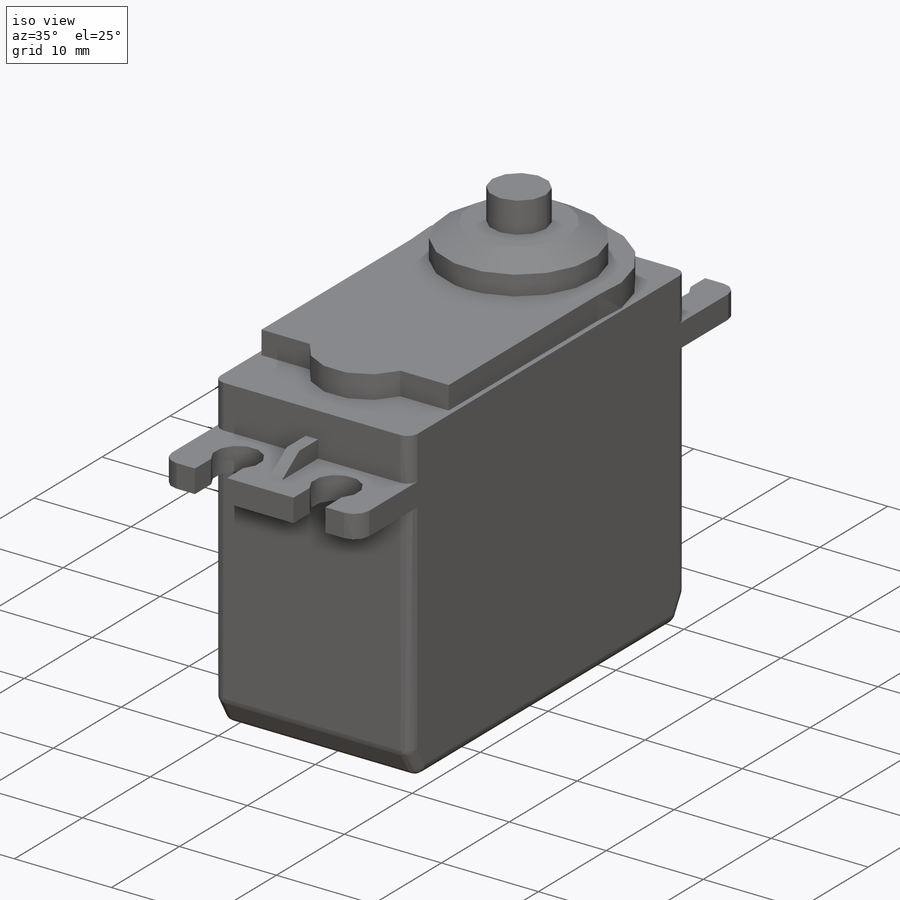
[diagram: iso view]
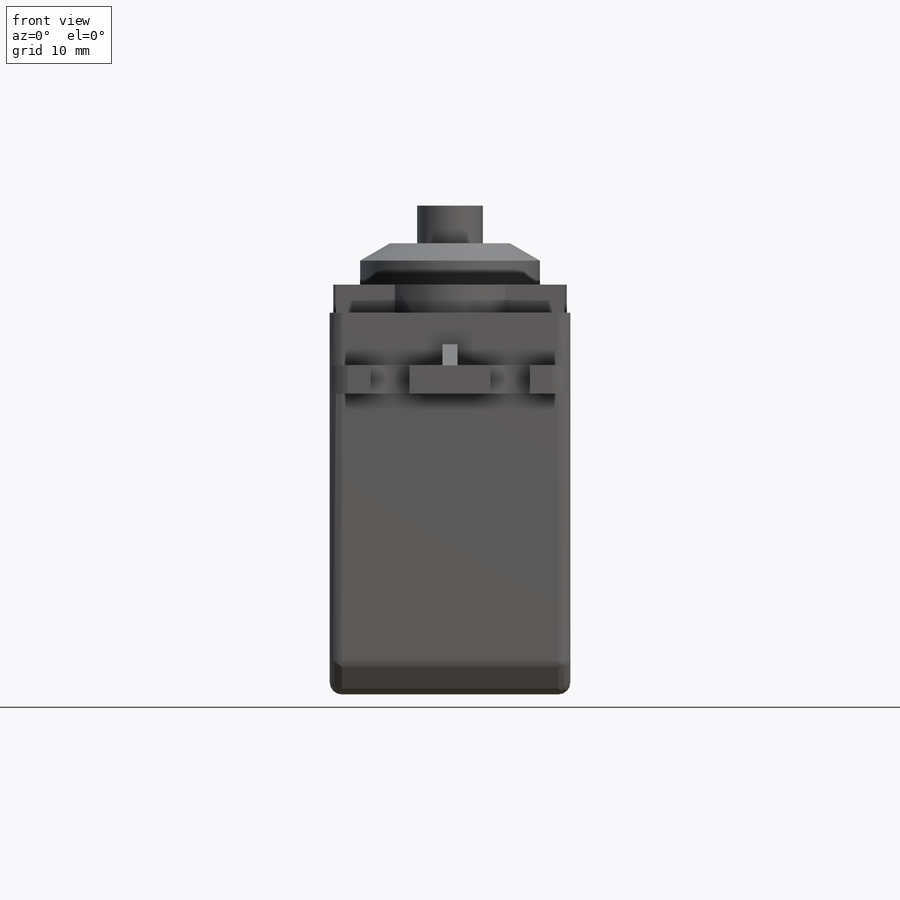
[diagram: front view]
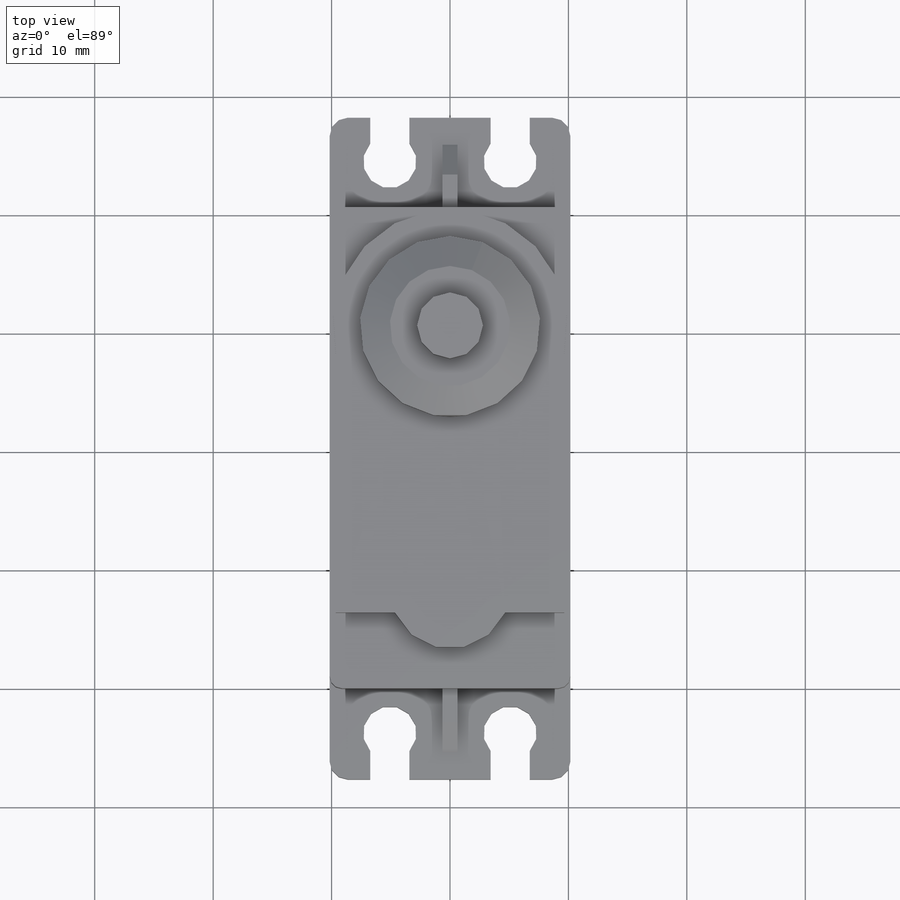
[diagram: top view]
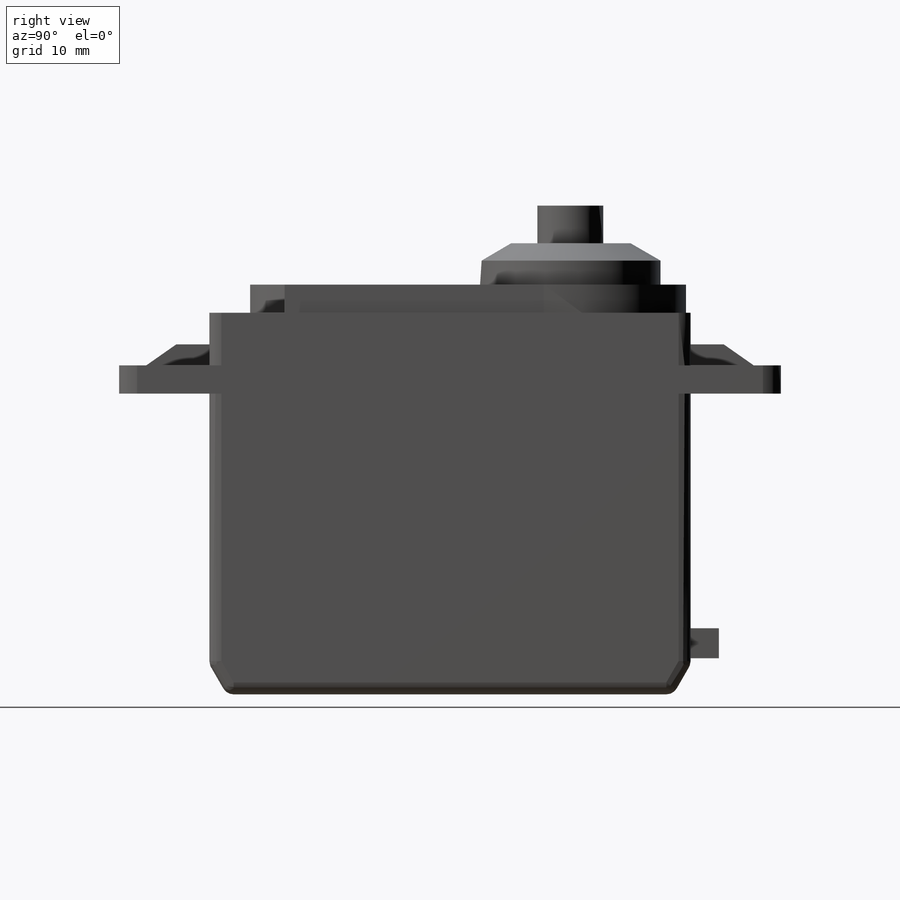
[diagram: right view]
SOLIDWORKS PART (.sldprt)
format: sldprt  version: not decoded by parser v0  size: 437,760 bytes
history: native  units: mm
features: sketch x9, extrude x8, plane x2, chamfer x2, fillet x2, material x1, mirror x1, cut_extrude x1 (+11 scaffold rows collapsed)
feature tree (37):
  scaffold x11  (default folders/planes/origin — collapsed)
  material  "Material <not specified>"
  sketch  "Sketch1"  dims[D1=20.32mm D2=40.64mm D3=10.16mm D4=10.16mm]
  extrude  "Extrude1"  Depth=25.4mm
  sketch  "Sketch2"  dims[c1.D2=4.5212mm c1.D9=4.5212mm c1.D3=5.08mm c1.D4=10.16mm c1.D5=48.26mm c1.D6=3.937mm c1.D7=7.62mm c1.D8=7.62mm c2.D9=3.302mm c2.D10=3.302mm c2.D11=1.651mm c2.D12=1.651mm c2.D1=0.0mm]
  extrude  "Extrude2"  Depth=2.38125mm
  sketch  "Sketch3"  dims[D1=0.0mm]
  extrude  "Extrude3"  Depth=4.445mm
  sketch  "Sketch4"  dims[D1=19.812mm D5=5.08mm D2=6.35mm D3=19.304mm D4=9.652mm D6=2.032mm]
  extrude  "Extrude4"  Depth=2.38125mm
  plane  "Plane1"  Offset=38.1mm
  sketch  "Sketch5"  dims[D1=15.24mm]
  extrude  "Extrude5"  [1 undecoded]
  chamfer  "Chamfer1"  Distance=2.54mm Angle=30deg
  sketch  "Sketch7"  dims[c1.D1=~2.644035mm c1.D2=~4.163646mm c2.D1=1.778mm c2.D2=2.794mm c2.D3=5.334mm]
  extrude  "Extrude6"  Depth=1.27mm
  plane  "Plane2"  Offset=20.32mm
  mirror  "Mirror1"
  sketch  "Sketch8"  dims[D1=~5.55625mm]
  extrude  "Extrude7"  Depth=3.175mm
  chamfer  "Chamfer2"  Distance=2.54mm Angle=30deg
  fillet  "Fillet1"  Radius=1.016mm
  fillet  "Fillet2"  Radius=1.524mm
  sketch  "Sketch9"  dims[D1=6.35mm D2=2.54mm D3=3.048mm D4=3.175mm]
  extrude  "Extrude8"  Depth=2.38125mm
  sketch  "Sketch10"  dims[D1=0.635mm]
  cut_extrude  "Cut-Extrude1"  [1 undecoded]
decode coverage: 20 of 23 modeling features carry decoded parameters
note: ~ marks probable driven/reference dimensions
note: 2 parameter values undecoded
note: suppression state not decoded; provenance and decode notes live in map.json
